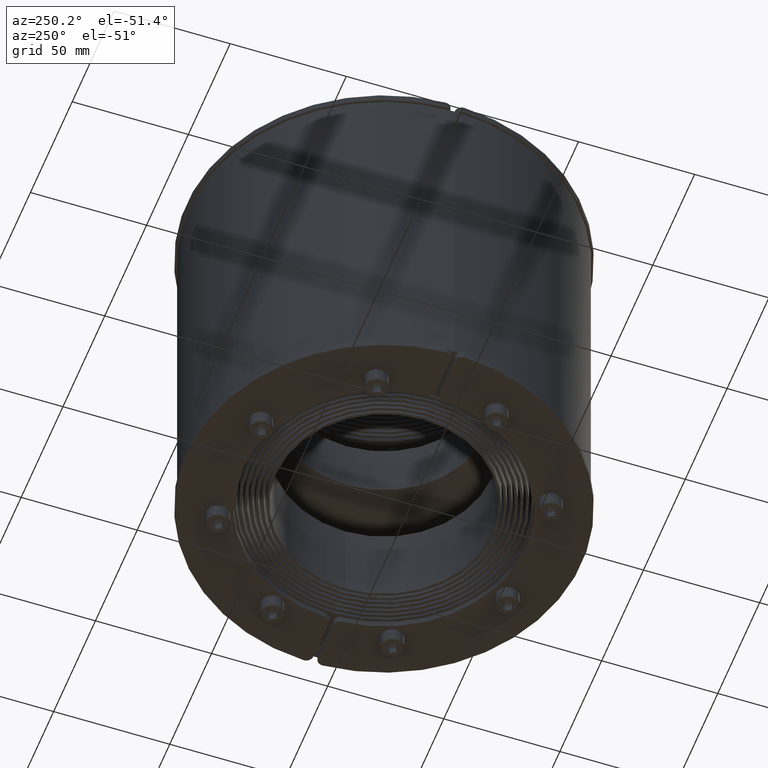
[diagram: clean part render]
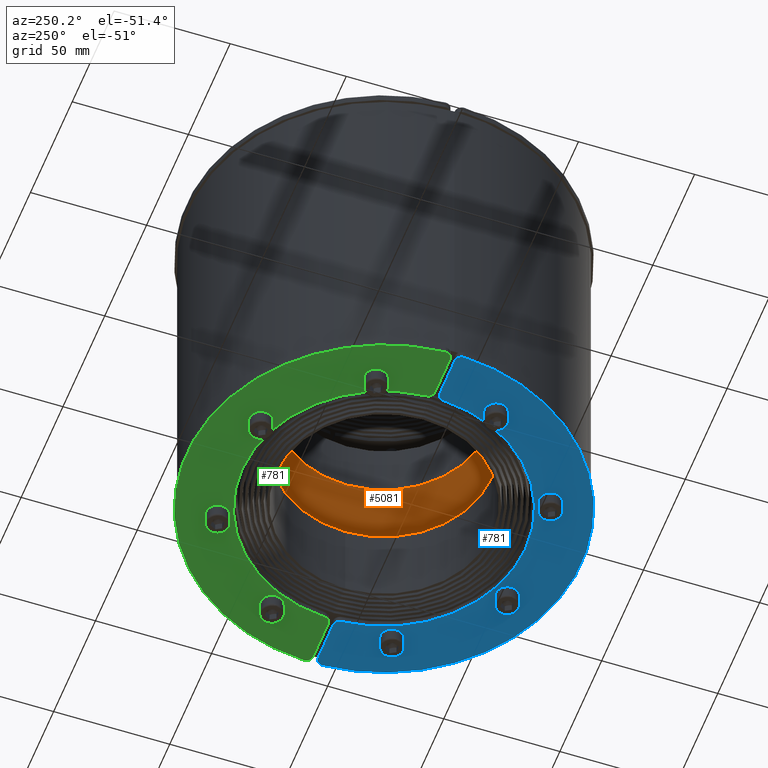
[diagram: same view with three faces highlighted in distinct colors, each labeled with its STEP entity id]
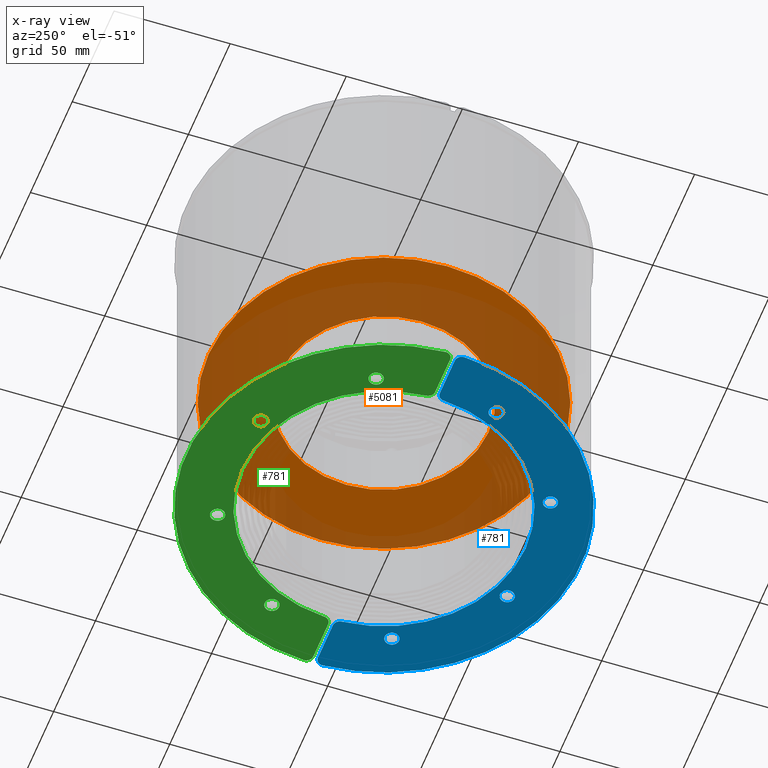
[diagram: x-ray of the same camera — body ghosted, the three highlighted faces saturated]
A machine part, auxiliary view with three faces highlighted in distinct colors.
The next image is the same camera in x-ray (body ghosted, the three faces saturated) — at least one of them is partly hidden behind the body in this view.
Their STEP definitions:

[orange] entity #5081 — the highlighted planar face has unit normal (-0, 0, 1).
#4927=CARTESIAN_POINT('',(0.0,45.0,-12.500000000000000));
#4928=VERTEX_POINT('',#4927);
#4937=CARTESIAN_POINT('',(-5.510729E-015,-45.0,-12.500000000000000));
#4938=VERTEX_POINT('',#4937);
#4939=CARTESIAN_POINT('',(0.0,0.0,-12.500000000000000));
#4940=DIRECTION('',(0.0,0.0,-1.0));
#4941=DIRECTION('',(0.0,1.0,0.0));
#4942=AXIS2_PLACEMENT_3D('',#4939,#4940,#4941);
#4943=CIRCLE('',#4942,45.0);
#4944=EDGE_CURVE('',#4928,#4938,#4943,.T.);
#4969=CARTESIAN_POINT('',(0.0,75.500000000000000,-12.500000000000000));
#4970=VERTEX_POINT('',#4969);
#4979=CARTESIAN_POINT('',(-9.245778E-015,-75.500000000000000,-12.500000000000000));
#4980=VERTEX_POINT('',#4979);
#4981=CARTESIAN_POINT('',(0.0,0.0,-12.500000000000000));
#4982=DIRECTION('',(0.0,0.0,1.0));
#4983=DIRECTION('',(0.0,1.0,0.0));
#4984=AXIS2_PLACEMENT_3D('',#4981,#4982,#4983);
#4985=CIRCLE('',#4984,75.500000000000000);
#4986=EDGE_CURVE('',#4970,#4980,#4985,.T.);
#5020=CARTESIAN_POINT('',(0.0,0.0,-12.500000000000000));
#5021=DIRECTION('',(0.0,0.0,1.0));
#5022=DIRECTION('',(0.0,1.0,0.0));
#5023=AXIS2_PLACEMENT_3D('',#5020,#5021,#5022);
#5024=CIRCLE('',#5023,75.500000000000000);
#5025=EDGE_CURVE('',#4980,#4970,#5024,.T.);
#5044=CARTESIAN_POINT('',(0.0,0.0,-12.500000000000000));
#5045=DIRECTION('',(0.0,0.0,-1.0));
#5046=DIRECTION('',(0.0,1.0,0.0));
#5047=AXIS2_PLACEMENT_3D('',#5044,#5045,#5046);
#5048=CIRCLE('',#5047,45.0);
#5049=EDGE_CURVE('',#4938,#4928,#5048,.T.);
#5068=CARTESIAN_POINT('',(0.0,0.0,-12.500000000000000));
#5069=DIRECTION('',(0.0,0.0,1.0));
#5070=DIRECTION('',(0.0,1.0,0.0));
#5071=AXIS2_PLACEMENT_3D('',#5068,#5069,#5070);
#5072=PLANE('',#5071);
#5073=ORIENTED_EDGE('',*,*,#4986,.F.);
#5074=ORIENTED_EDGE('',*,*,#5025,.F.);
#5075=EDGE_LOOP('',(#5073,#5074));
#5076=FACE_OUTER_BOUND('',#5075,.T.);
#5077=ORIENTED_EDGE('',*,*,#4944,.F.);
#5078=ORIENTED_EDGE('',*,*,#5049,.F.);
#5079=EDGE_LOOP('',(#5077,#5078));
#5080=FACE_BOUND('',#5079,.T.);
#5081=ADVANCED_FACE('',(#5076,#5080),#5072,.F.);

[blue] entity #781 — the highlighted planar face has unit normal (0, -0, -1).
#165=CARTESIAN_POINT('',(65.461868444511879,-17.168868315356690,1.500000000000000));
#166=VERTEX_POINT('',#165);
#182=CARTESIAN_POINT('',(59.261868444511855,-17.168868315356690,1.500000000000000));
#183=VERTEX_POINT('',#182);
#190=CARTESIAN_POINT('',(62.361868444511856,-17.168868315356690,1.500000000000000));
#191=DIRECTION('',(0.0,0.0,1.0));
#192=DIRECTION('',(1.0,0.0,0.0));
#193=AXIS2_PLACEMENT_3D('',#190,#191,#192);
#194=CIRCLE('',#193,3.100000000000000);
#195=EDGE_CURVE('',#183,#166,#194,.T.);
#207=CARTESIAN_POINT('',(28.931131684643447,19.361868444511629,1.500000000000000));
#208=VERTEX_POINT('',#207);
#224=CARTESIAN_POINT('',(22.731131684643422,19.361868444511629,1.500000000000000));
#225=VERTEX_POINT('',#224);
#232=CARTESIAN_POINT('',(25.831131684643424,19.361868444511629,1.500000000000000));
#233=DIRECTION('',(0.0,0.0,1.0));
#234=DIRECTION('',(1.0,0.0,0.0));
#235=AXIS2_PLACEMENT_3D('',#232,#233,#234);
#236=CIRCLE('',#235,3.100000000000000);
#237=EDGE_CURVE('',#225,#208,#236,.T.);
#249=CARTESIAN_POINT('',(-22.731131684643657,19.361868444511629,1.500000000000000));
#250=VERTEX_POINT('',#249);
#266=CARTESIAN_POINT('',(-28.931131684643653,19.361868444511629,1.500000000000000));
#267=VERTEX_POINT('',#266);
#274=CARTESIAN_POINT('',(-25.831131684643651,19.361868444511629,1.500000000000000));
#275=DIRECTION('',(0.0,0.0,1.0));
#276=DIRECTION('',(1.0,0.0,0.0));
#277=AXIS2_PLACEMENT_3D('',#274,#275,#276);
#278=CIRCLE('',#277,3.100000000000000);
#279=EDGE_CURVE('',#267,#250,#278,.T.);
#291=CARTESIAN_POINT('',(-59.261868444512032,-17.168868315356576,1.500000000000000));
#292=VERTEX_POINT('',#291);
#308=CARTESIAN_POINT('',(-65.461868444512021,-17.168868315356576,1.500000000000000));
#309=VERTEX_POINT('',#308);
#316=CARTESIAN_POINT('',(-62.361868444512027,-17.168868315356576,1.500000000000000));
#317=DIRECTION('',(0.0,0.0,1.0));
#318=DIRECTION('',(1.0,0.0,0.0));
#319=AXIS2_PLACEMENT_3D('',#316,#317,#318);
#320=CIRCLE('',#319,3.100000000000000);
#321=EDGE_CURVE('',#309,#292,#320,.T.);
#333=CARTESIAN_POINT('',(84.902380917773144,-39.000000000000171,1.500000000000000));
#334=VERTEX_POINT('',#333);
#350=CARTESIAN_POINT('',(84.898809487935580,-38.853658536585556,1.500000000000000));
#351=VERTEX_POINT('',#350);
#358=CARTESIAN_POINT('',(81.902380917773144,-39.000000000000171,1.500000000000000));
#359=DIRECTION('',(0.0,0.0,-1.0));
#360=DIRECTION('',(1.0,0.0,0.0));
#361=AXIS2_PLACEMENT_3D('',#358,#359,#360);
#362=CIRCLE('',#361,3.0);
#363=EDGE_CURVE('',#351,#334,#362,.T.);
#373=CARTESIAN_POINT('',(-84.902380917773144,-39.000000000000227,1.500000000000000));
#374=VERTEX_POINT('',#373);
#383=CARTESIAN_POINT('',(-84.898809487935551,-38.853658536585613,1.500000000000000));
#384=VERTEX_POINT('',#383);
#385=CARTESIAN_POINT('',(-81.902380917773144,-39.000000000000227,1.500000000000000));
#386=DIRECTION('',(0.0,0.0,-1.0));
#387=DIRECTION('',(1.0,0.0,0.0));
#388=AXIS2_PLACEMENT_3D('',#385,#386,#387);
#389=CIRCLE('',#388,3.0);
#390=EDGE_CURVE('',#374,#384,#389,.T.);
#415=CARTESIAN_POINT('',(81.902380917773144,-42.000000000000227,1.500000000000000));
#416=VERTEX_POINT('',#415);
#417=CARTESIAN_POINT('',(63.874877690685253,-42.000000000000284,1.500000000000000));
#418=VERTEX_POINT('',#417);
#419=CARTESIAN_POINT('',(81.902380917773144,-42.000000000000227,1.500000000000000));
#420=DIRECTION('',(-1.0,0.0,0.0));
#421=VECTOR('',#420,18.027503227087891);
#422=LINE('',#419,#421);
#423=EDGE_CURVE('',#416,#418,#422,.T.);
#455=CARTESIAN_POINT('',(60.880742798934421,-39.187500000000171,1.500000000000000));
#456=VERTEX_POINT('',#455);
#457=CARTESIAN_POINT('',(63.874877690685253,-39.000000000000227,1.500000000000000));
#458=DIRECTION('',(0.0,0.0,-1.0));
#459=DIRECTION('',(1.0,0.0,0.0));
#460=AXIS2_PLACEMENT_3D('',#457,#458,#459);
#461=CIRCLE('',#460,3.0);
#462=EDGE_CURVE('',#418,#456,#461,.T.);
#488=CARTESIAN_POINT('',(-60.880742798934421,-39.187500000000227,1.500000000000000));
#489=VERTEX_POINT('',#488);
#490=CARTESIAN_POINT('',(0.0,-42.999999999999716,1.500000000000000));
#491=DIRECTION('',(0.0,0.0,1.0));
#492=DIRECTION('',(1.0,0.0,0.0));
#493=AXIS2_PLACEMENT_3D('',#490,#491,#492);
#494=CIRCLE('',#493,61.0);
#495=EDGE_CURVE('',#456,#489,#494,.T.);
#521=CARTESIAN_POINT('',(-63.874877690685310,-42.000000000000227,1.500000000000000));
#522=VERTEX_POINT('',#521);
#523=CARTESIAN_POINT('',(-63.874877690685310,-39.000000000000114,1.500000000000000));
#524=DIRECTION('',(0.0,0.0,-1.0));
#525=DIRECTION('',(1.0,0.0,0.0));
#526=AXIS2_PLACEMENT_3D('',#523,#524,#525);
#527=CIRCLE('',#526,3.0);
#528=EDGE_CURVE('',#489,#522,#527,.T.);
#554=CARTESIAN_POINT('',(-81.902380917773144,-42.000000000000227,1.500000000000000));
#555=VERTEX_POINT('',#554);
#556=CARTESIAN_POINT('',(-63.874877690685310,-42.000000000000227,1.500000000000000));
#557=DIRECTION('',(-1.0,0.0,0.0));
#558=VECTOR('',#557,18.027503227087834);
#559=LINE('',#556,#558);
#560=EDGE_CURVE('',#522,#555,#559,.T.);
#594=CARTESIAN_POINT('',(-81.902380917773144,-39.000000000000227,1.500000000000000));
#595=DIRECTION('',(0.0,0.0,-1.0));
#596=DIRECTION('',(1.0,0.0,0.0));
#597=AXIS2_PLACEMENT_3D('',#594,#595,#596);
#598=CIRCLE('',#597,3.0);
#599=EDGE_CURVE('',#555,#374,#598,.T.);
#609=CARTESIAN_POINT('',(0.0,-42.999999999999716,1.500000000000000));
#610=DIRECTION('',(0.0,0.0,-1.0));
#611=DIRECTION('',(1.0,0.0,0.0));
#612=AXIS2_PLACEMENT_3D('',#609,#610,#611);
#613=CIRCLE('',#612,85.000000000000028);
#614=EDGE_CURVE('',#384,#351,#613,.T.);
#634=CARTESIAN_POINT('',(81.902380917773144,-39.000000000000171,1.500000000000000));
#635=DIRECTION('',(0.0,0.0,-1.0));
#636=DIRECTION('',(1.0,0.0,0.0));
#637=AXIS2_PLACEMENT_3D('',#634,#635,#636);
#638=CIRCLE('',#637,3.0);
#639=EDGE_CURVE('',#334,#416,#638,.T.);
#658=CARTESIAN_POINT('',(-62.361868444512027,-17.168868315356576,1.500000000000000));
#659=DIRECTION('',(0.0,0.0,1.0));
#660=DIRECTION('',(1.0,0.0,0.0));
#661=AXIS2_PLACEMENT_3D('',#658,#659,#660);
#662=CIRCLE('',#661,3.100000000000000);
#663=EDGE_CURVE('',#292,#309,#662,.T.);
#682=CARTESIAN_POINT('',(-25.831131684643651,19.361868444511629,1.500000000000000));
#683=DIRECTION('',(0.0,0.0,1.0));
#684=DIRECTION('',(1.0,0.0,0.0));
#685=AXIS2_PLACEMENT_3D('',#682,#683,#684);
#686=CIRCLE('',#685,3.100000000000000);
#687=EDGE_CURVE('',#250,#267,#686,.T.);
#706=CARTESIAN_POINT('',(25.831131684643424,19.361868444511629,1.500000000000000));
#707=DIRECTION('',(0.0,0.0,1.0));
#708=DIRECTION('',(1.0,0.0,0.0));
#709=AXIS2_PLACEMENT_3D('',#706,#707,#708);
#710=CIRCLE('',#709,3.100000000000000);
#711=EDGE_CURVE('',#208,#225,#710,.T.);
#730=CARTESIAN_POINT('',(62.361868444511856,-17.168868315356690,1.500000000000000));
#731=DIRECTION('',(0.0,0.0,1.0));
#732=DIRECTION('',(1.0,0.0,0.0));
#733=AXIS2_PLACEMENT_3D('',#730,#731,#732);
#734=CIRCLE('',#733,3.100000000000000);
#735=EDGE_CURVE('',#166,#183,#734,.T.);
#748=CARTESIAN_POINT('',(0.0,-2.890056787334174,1.500000000000000));
#749=DIRECTION('',(0.0,0.0,1.0));
#750=DIRECTION('',(1.0,0.0,0.0));
#751=AXIS2_PLACEMENT_3D('',#748,#749,#750);
#752=PLANE('',#751);
#753=ORIENTED_EDGE('',*,*,#423,.F.);
#754=ORIENTED_EDGE('',*,*,#639,.F.);
#755=ORIENTED_EDGE('',*,*,#363,.F.);
#756=ORIENTED_EDGE('',*,*,#614,.F.);
#757=ORIENTED_EDGE('',*,*,#390,.F.);
#758=ORIENTED_EDGE('',*,*,#599,.F.);
#759=ORIENTED_EDGE('',*,*,#560,.F.);
#760=ORIENTED_EDGE('',*,*,#528,.F.);
#761=ORIENTED_EDGE('',*,*,#495,.F.);
#762=ORIENTED_EDGE('',*,*,#462,.F.);
#763=EDGE_LOOP('',(#753,#754,#755,#756,#757,#758,#759,#760,#761,#762));
#764=FACE_OUTER_BOUND('',#763,.T.);
#765=ORIENTED_EDGE('',*,*,#735,.F.);
#766=ORIENTED_EDGE('',*,*,#195,.F.);
#767=EDGE_LOOP('',(#765,#766));
#768=FACE_BOUND('',#767,.T.);
#769=ORIENTED_EDGE('',*,*,#711,.F.);
#770=ORIENTED_EDGE('',*,*,#237,.F.);
#771=EDGE_LOOP('',(#769,#770));
#772=FACE_BOUND('',#771,.T.);
#773=ORIENTED_EDGE('',*,*,#687,.F.);
#774=ORIENTED_EDGE('',*,*,#279,.F.);
#775=EDGE_LOOP('',(#773,#774));
#776=FACE_BOUND('',#775,.T.);
#777=ORIENTED_EDGE('',*,*,#663,.F.);
#778=ORIENTED_EDGE('',*,*,#321,.F.);
#779=EDGE_LOOP('',(#777,#778));
#780=FACE_BOUND('',#779,.T.);
#781=ADVANCED_FACE('',(#764,#768,#772,#776,#780),#752,.T.);

[green] entity #781 — the highlighted planar face has unit normal (0, -0, -1).
#165=CARTESIAN_POINT('',(65.461868444511879,-17.168868315356690,1.500000000000000));
#166=VERTEX_POINT('',#165);
#182=CARTESIAN_POINT('',(59.261868444511855,-17.168868315356690,1.500000000000000));
#183=VERTEX_POINT('',#182);
#190=CARTESIAN_POINT('',(62.361868444511856,-17.168868315356690,1.500000000000000));
#191=DIRECTION('',(0.0,0.0,1.0));
#192=DIRECTION('',(1.0,0.0,0.0));
#193=AXIS2_PLACEMENT_3D('',#190,#191,#192);
#194=CIRCLE('',#193,3.100000000000000);
#195=EDGE_CURVE('',#183,#166,#194,.T.);
#207=CARTESIAN_POINT('',(28.931131684643447,19.361868444511629,1.500000000000000));
#208=VERTEX_POINT('',#207);
#224=CARTESIAN_POINT('',(22.731131684643422,19.361868444511629,1.500000000000000));
#225=VERTEX_POINT('',#224);
#232=CARTESIAN_POINT('',(25.831131684643424,19.361868444511629,1.500000000000000));
#233=DIRECTION('',(0.0,0.0,1.0));
#234=DIRECTION('',(1.0,0.0,0.0));
#235=AXIS2_PLACEMENT_3D('',#232,#233,#234);
#236=CIRCLE('',#235,3.100000000000000);
#237=EDGE_CURVE('',#225,#208,#236,.T.);
#249=CARTESIAN_POINT('',(-22.731131684643657,19.361868444511629,1.500000000000000));
#250=VERTEX_POINT('',#249);
#266=CARTESIAN_POINT('',(-28.931131684643653,19.361868444511629,1.500000000000000));
#267=VERTEX_POINT('',#266);
#274=CARTESIAN_POINT('',(-25.831131684643651,19.361868444511629,1.500000000000000));
#275=DIRECTION('',(0.0,0.0,1.0));
#276=DIRECTION('',(1.0,0.0,0.0));
#277=AXIS2_PLACEMENT_3D('',#274,#275,#276);
#278=CIRCLE('',#277,3.100000000000000);
#279=EDGE_CURVE('',#267,#250,#278,.T.);
#291=CARTESIAN_POINT('',(-59.261868444512032,-17.168868315356576,1.500000000000000));
#292=VERTEX_POINT('',#291);
#308=CARTESIAN_POINT('',(-65.461868444512021,-17.168868315356576,1.500000000000000));
#309=VERTEX_POINT('',#308);
#316=CARTESIAN_POINT('',(-62.361868444512027,-17.168868315356576,1.500000000000000));
#317=DIRECTION('',(0.0,0.0,1.0));
#318=DIRECTION('',(1.0,0.0,0.0));
#319=AXIS2_PLACEMENT_3D('',#316,#317,#318);
#320=CIRCLE('',#319,3.100000000000000);
#321=EDGE_CURVE('',#309,#292,#320,.T.);
#333=CARTESIAN_POINT('',(84.902380917773144,-39.000000000000171,1.500000000000000));
#334=VERTEX_POINT('',#333);
#350=CARTESIAN_POINT('',(84.898809487935580,-38.853658536585556,1.500000000000000));
#351=VERTEX_POINT('',#350);
#358=CARTESIAN_POINT('',(81.902380917773144,-39.000000000000171,1.500000000000000));
#359=DIRECTION('',(0.0,0.0,-1.0));
#360=DIRECTION('',(1.0,0.0,0.0));
#361=AXIS2_PLACEMENT_3D('',#358,#359,#360);
#362=CIRCLE('',#361,3.0);
#363=EDGE_CURVE('',#351,#334,#362,.T.);
#373=CARTESIAN_POINT('',(-84.902380917773144,-39.000000000000227,1.500000000000000));
#374=VERTEX_POINT('',#373);
#383=CARTESIAN_POINT('',(-84.898809487935551,-38.853658536585613,1.500000000000000));
#384=VERTEX_POINT('',#383);
#385=CARTESIAN_POINT('',(-81.902380917773144,-39.000000000000227,1.500000000000000));
#386=DIRECTION('',(0.0,0.0,-1.0));
#387=DIRECTION('',(1.0,0.0,0.0));
#388=AXIS2_PLACEMENT_3D('',#385,#386,#387);
#389=CIRCLE('',#388,3.0);
#390=EDGE_CURVE('',#374,#384,#389,.T.);
#415=CARTESIAN_POINT('',(81.902380917773144,-42.000000000000227,1.500000000000000));
#416=VERTEX_POINT('',#415);
#417=CARTESIAN_POINT('',(63.874877690685253,-42.000000000000284,1.500000000000000));
#418=VERTEX_POINT('',#417);
#419=CARTESIAN_POINT('',(81.902380917773144,-42.000000000000227,1.500000000000000));
#420=DIRECTION('',(-1.0,0.0,0.0));
#421=VECTOR('',#420,18.027503227087891);
#422=LINE('',#419,#421);
#423=EDGE_CURVE('',#416,#418,#422,.T.);
#455=CARTESIAN_POINT('',(60.880742798934421,-39.187500000000171,1.500000000000000));
#456=VERTEX_POINT('',#455);
#457=CARTESIAN_POINT('',(63.874877690685253,-39.000000000000227,1.500000000000000));
#458=DIRECTION('',(0.0,0.0,-1.0));
#459=DIRECTION('',(1.0,0.0,0.0));
#460=AXIS2_PLACEMENT_3D('',#457,#458,#459);
#461=CIRCLE('',#460,3.0);
#462=EDGE_CURVE('',#418,#456,#461,.T.);
#488=CARTESIAN_POINT('',(-60.880742798934421,-39.187500000000227,1.500000000000000));
#489=VERTEX_POINT('',#488);
#490=CARTESIAN_POINT('',(0.0,-42.999999999999716,1.500000000000000));
#491=DIRECTION('',(0.0,0.0,1.0));
#492=DIRECTION('',(1.0,0.0,0.0));
#493=AXIS2_PLACEMENT_3D('',#490,#491,#492);
#494=CIRCLE('',#493,61.0);
#495=EDGE_CURVE('',#456,#489,#494,.T.);
#521=CARTESIAN_POINT('',(-63.874877690685310,-42.000000000000227,1.500000000000000));
#522=VERTEX_POINT('',#521);
#523=CARTESIAN_POINT('',(-63.874877690685310,-39.000000000000114,1.500000000000000));
#524=DIRECTION('',(0.0,0.0,-1.0));
#525=DIRECTION('',(1.0,0.0,0.0));
#526=AXIS2_PLACEMENT_3D('',#523,#524,#525);
#527=CIRCLE('',#526,3.0);
#528=EDGE_CURVE('',#489,#522,#527,.T.);
#554=CARTESIAN_POINT('',(-81.902380917773144,-42.000000000000227,1.500000000000000));
#555=VERTEX_POINT('',#554);
#556=CARTESIAN_POINT('',(-63.874877690685310,-42.000000000000227,1.500000000000000));
#557=DIRECTION('',(-1.0,0.0,0.0));
#558=VECTOR('',#557,18.027503227087834);
#559=LINE('',#556,#558);
#560=EDGE_CURVE('',#522,#555,#559,.T.);
#594=CARTESIAN_POINT('',(-81.902380917773144,-39.000000000000227,1.500000000000000));
#595=DIRECTION('',(0.0,0.0,-1.0));
#596=DIRECTION('',(1.0,0.0,0.0));
#597=AXIS2_PLACEMENT_3D('',#594,#595,#596);
#598=CIRCLE('',#597,3.0);
#599=EDGE_CURVE('',#555,#374,#598,.T.);
#609=CARTESIAN_POINT('',(0.0,-42.999999999999716,1.500000000000000));
#610=DIRECTION('',(0.0,0.0,-1.0));
#611=DIRECTION('',(1.0,0.0,0.0));
#612=AXIS2_PLACEMENT_3D('',#609,#610,#611);
#613=CIRCLE('',#612,85.000000000000028);
#614=EDGE_CURVE('',#384,#351,#613,.T.);
#634=CARTESIAN_POINT('',(81.902380917773144,-39.000000000000171,1.500000000000000));
#635=DIRECTION('',(0.0,0.0,-1.0));
#636=DIRECTION('',(1.0,0.0,0.0));
#637=AXIS2_PLACEMENT_3D('',#634,#635,#636);
#638=CIRCLE('',#637,3.0);
#639=EDGE_CURVE('',#334,#416,#638,.T.);
#658=CARTESIAN_POINT('',(-62.361868444512027,-17.168868315356576,1.500000000000000));
#659=DIRECTION('',(0.0,0.0,1.0));
#660=DIRECTION('',(1.0,0.0,0.0));
#661=AXIS2_PLACEMENT_3D('',#658,#659,#660);
#662=CIRCLE('',#661,3.100000000000000);
#663=EDGE_CURVE('',#292,#309,#662,.T.);
#682=CARTESIAN_POINT('',(-25.831131684643651,19.361868444511629,1.500000000000000));
#683=DIRECTION('',(0.0,0.0,1.0));
#684=DIRECTION('',(1.0,0.0,0.0));
#685=AXIS2_PLACEMENT_3D('',#682,#683,#684);
#686=CIRCLE('',#685,3.100000000000000);
#687=EDGE_CURVE('',#250,#267,#686,.T.);
#706=CARTESIAN_POINT('',(25.831131684643424,19.361868444511629,1.500000000000000));
#707=DIRECTION('',(0.0,0.0,1.0));
#708=DIRECTION('',(1.0,0.0,0.0));
#709=AXIS2_PLACEMENT_3D('',#706,#707,#708);
#710=CIRCLE('',#709,3.100000000000000);
#711=EDGE_CURVE('',#208,#225,#710,.T.);
#730=CARTESIAN_POINT('',(62.361868444511856,-17.168868315356690,1.500000000000000));
#731=DIRECTION('',(0.0,0.0,1.0));
#732=DIRECTION('',(1.0,0.0,0.0));
#733=AXIS2_PLACEMENT_3D('',#730,#731,#732);
#734=CIRCLE('',#733,3.100000000000000);
#735=EDGE_CURVE('',#166,#183,#734,.T.);
#748=CARTESIAN_POINT('',(0.0,-2.890056787334174,1.500000000000000));
#749=DIRECTION('',(0.0,0.0,1.0));
#750=DIRECTION('',(1.0,0.0,0.0));
#751=AXIS2_PLACEMENT_3D('',#748,#749,#750);
#752=PLANE('',#751);
#753=ORIENTED_EDGE('',*,*,#423,.F.);
#754=ORIENTED_EDGE('',*,*,#639,.F.);
#755=ORIENTED_EDGE('',*,*,#363,.F.);
#756=ORIENTED_EDGE('',*,*,#614,.F.);
#757=ORIENTED_EDGE('',*,*,#390,.F.);
#758=ORIENTED_EDGE('',*,*,#599,.F.);
#759=ORIENTED_EDGE('',*,*,#560,.F.);
#760=ORIENTED_EDGE('',*,*,#528,.F.);
#761=ORIENTED_EDGE('',*,*,#495,.F.);
#762=ORIENTED_EDGE('',*,*,#462,.F.);
#763=EDGE_LOOP('',(#753,#754,#755,#756,#757,#758,#759,#760,#761,#762));
#764=FACE_OUTER_BOUND('',#763,.T.);
#765=ORIENTED_EDGE('',*,*,#735,.F.);
#766=ORIENTED_EDGE('',*,*,#195,.F.);
#767=EDGE_LOOP('',(#765,#766));
#768=FACE_BOUND('',#767,.T.);
#769=ORIENTED_EDGE('',*,*,#711,.F.);
#770=ORIENTED_EDGE('',*,*,#237,.F.);
#771=EDGE_LOOP('',(#769,#770));
#772=FACE_BOUND('',#771,.T.);
#773=ORIENTED_EDGE('',*,*,#687,.F.);
#774=ORIENTED_EDGE('',*,*,#279,.F.);
#775=EDGE_LOOP('',(#773,#774));
#776=FACE_BOUND('',#775,.T.);
#777=ORIENTED_EDGE('',*,*,#663,.F.);
#778=ORIENTED_EDGE('',*,*,#321,.F.);
#779=EDGE_LOOP('',(#777,#778));
#780=FACE_BOUND('',#779,.T.);
#781=ADVANCED_FACE('',(#764,#768,#772,#776,#780),#752,.T.);